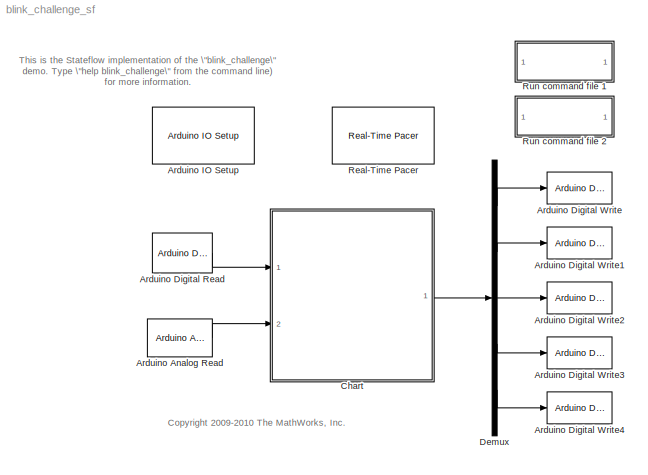
MODEL blink_challenge_sf
KIND model
BLOCK [Reference] Arduino Analog Read  REF=arduino_io_lib/Arduino Analog Read
  Ports = [0, 1]
  SourceBlock = arduino_io_lib/Arduino Analog Read
  SourceType = Arduino IO Analog Read
  T = 0.1
  arduinoPin = 2
  arduinoVar = Temporary arduino variable: Arduino1
BLOCK [Reference] Arduino Digital Read  REF=arduino_io_lib/Arduino Digital Read
  Ports = [0, 1]
  SourceBlock = arduino_io_lib/Arduino Digital Read
  SourceType = Arduino IO digital read
  T = 0.1
  arduinoPin = 2
  arduinoVar = Temporary arduino variable: Arduino1
BLOCK [Reference] Arduino Digital Write  REF=arduino_io_lib/Arduino Digital Write
  Ports = [1]
  SourceBlock = arduino_io_lib/Arduino Digital Write
  SourceType = Arduino IO digital Write
  T = 0.1
  arduinoPin = 9
  arduinoVar = Temporary arduino variable: Arduino1
BLOCK [Reference] Arduino Digital Write1  REF=arduino_io_lib/Arduino Digital Write
  Ports = [1]
  SourceBlock = arduino_io_lib/Arduino Digital Write
  SourceType = Arduino IO digital Write
  T = 0.1
  arduinoPin = 10
  arduinoVar = Temporary arduino variable: Arduino1
BLOCK [Reference] Arduino Digital Write2  REF=arduino_io_lib/Arduino Digital Write
  Ports = [1]
  SourceBlock = arduino_io_lib/Arduino Digital Write
  SourceType = Arduino IO digital Write
  T = 0.1
  arduinoPin = 11
  arduinoVar = Temporary arduino variable: Arduino1
BLOCK [Reference] Arduino Digital Write3  REF=arduino_io_lib/Arduino Digital Write
  Ports = [1]
  SourceBlock = arduino_io_lib/Arduino Digital Write
  SourceType = Arduino IO digital Write
  T = 0.1
  arduinoPin = 12
  arduinoVar = Temporary arduino variable: Arduino1
BLOCK [Reference] Arduino Digital Write4  REF=arduino_io_lib/Arduino Digital Write
  Ports = [1]
  SourceBlock = arduino_io_lib/Arduino Digital Write
  SourceType = Arduino IO digital Write
  T = 0.1
  arduinoPin = 13
  arduinoVar = Temporary arduino variable: Arduino1
BLOCK [Reference] Arduino IO Setup  REF=arduino_io_lib/Arduino IO Setup
  Ports = []
  Priority = 3
  SourceBlock = arduino_io_lib/Arduino IO Setup
  SourceType = Arduino IO Setup
  arduinoVar = Temporary arduino variable: Arduino1
  comPort = COM9
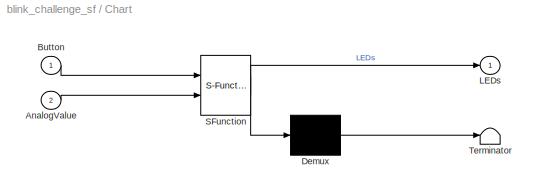
BLOCK [SubSystem] Chart
  ErrorFcn = Stateflow.Translate.translate
  FunctionWithSeparateData = off
  MaskDescription = Stateflow diagram
  MaskDisplay = plot(sf('Private','sfblk','xIcon'),sf('Private','sfblk','yIcon'));text(0.5,0,sf('Private', 'sfblk', 'tIcon'),'HorizontalAl','Center','VerticalAl','Bottom');
  MaskHideContents = off
  MaskIconFrame = off
  MaskIconOpaque = off
  MaskIconRotate = none
  MaskIconUnits = autoscale
  MaskSelfModifiable = on
  MaskType = Stateflow
  MinAlgLoopOccurrences = off
  Opaque = off
  PermitHierarchicalResolution = ParametersOnly
  Ports = [2, 1]
  PropExecContextOutsideSubsystem = off
  RTWSystemCode = Auto
  TreatAsAtomicUnit = on
BLOCK [Demux] Chart/ Demux 
  Outputs = 1
  Ports = [1, 1]
BLOCK [S-Function] Chart/ SFunction 
  EnableBusSupport = on
  FunctionName = sf_sfun
  PortCounts = [2 2]
  Ports = [2, 2]
  Tag = Stateflow S-Function blink_challenge_sf 1
BLOCK [Terminator] Chart/ Terminator 
BLOCK [Inport] Chart/AnalogValue
  IconDisplay = Port number
  Port = 2
BLOCK [Inport] Chart/Button
  IconDisplay = Port number
BLOCK [Outport] Chart/LEDs
  IconDisplay = Port number
BLOCK [Demux] Demux
  DisplayOption = bar
  Outputs = ones(5,1)
  Ports = [1, 5]
BLOCK [Reference] Real-Time Pacer  REF=arduino_io_lib/Real-Time Pacer
  Ports = []
  SourceBlock = arduino_io_lib/Real-Time Pacer
  SourceType = RealTime_Pacer
  simTimePerRealTime = 1
BLOCK [SubSystem] Run command file 1
  FunctionWithSeparateData = off
  MaskDisplay = disp('Simulink \\nImplementation')
  MaskHideContents = off
  MaskIconFrame = on
  MaskIconOpaque = on
  MaskIconRotate = none
  MaskIconUnits = autoscale
  MinAlgLoopOccurrences = off
  Opaque = off
  OpenFcn = blink_challenge_sim
  Ports = []
  PropExecContextOutsideSubsystem = off
  RTWSystemCode = Auto
BLOCK [SubSystem] Run command file 2
  FunctionWithSeparateData = off
  MaskDisplay = disp('MATLAB \\nImplementation')
  MaskHideContents = off
  MaskIconFrame = on
  MaskIconOpaque = on
  MaskIconRotate = none
  MaskIconUnits = autoscale
  MinAlgLoopOccurrences = off
  Opaque = off
  OpenFcn = edit('blink_challenge.m');
  Ports = []
  PropExecContextOutsideSubsystem = off
  RTWSystemCode = Auto
ANNOTATION (root): <copyright redacted>
ANNOTATION (root): This is the Stateflow implementation of the \"blink_challenge\"\ndemo. Type \"help blink_challenge\" from the command line) \nfor more information.
LINE Arduino Analog Read:1 -> Chart:2
LINE Arduino Digital Read:1 -> Chart:1
LINE Chart/ Demux :1 -> Chart/ Terminator :1
LINE Chart/ SFunction :1 -> Chart/ Demux :1
LINE Chart/ SFunction :2 -> Chart/LEDs:1
LINE Chart/AnalogValue:1 -> Chart/ SFunction :2
LINE Chart/Button:1 -> Chart/ SFunction :1
LINE Chart:1 -> Demux:1
LINE Demux:1 -> Arduino Digital Write:1
LINE Demux:2 -> Arduino Digital Write1:1
LINE Demux:3 -> Arduino Digital Write2:1
LINE Demux:4 -> Arduino Digital Write3:1
LINE Demux:5 -> Arduino Digital Write4:1
CHART Chart states=13 transitions=13
  STATE_LABEL 'SelectMode'
  STATE_LABEL 'ButtonPressed'
  STATE_LABEL 'ButtonReleased\\nentry: send(ChangeMode)'
  STATE_LABEL 'ExecuteMode\\nduring: NumTicks = RawValueToTicks(AnalogValue);'
  STATE_LABEL 'All_LEDs_Off\\nentry, during: LEDs = 0;'
  STATE_LABEL 'All_LEDs_On\\nentry, during: LEDs = 1;'
  STATE_LABEL 'All_LEDs_Blink'
  STATE_LABEL 'All_LEDs_Cycle\\nentry: index = 0; LEDs = 0;'
  STATE_LABEL 'LEDS_On\\nentry: LEDs = 1;'
  STATE_LABEL 'LEDs_Off\\nentry: LEDs = 0;'
  STATE_LABEL 'numTicks = RawValueToTicks(analogValue)'
  STATE_LABEL 'setLEDs(ledIndex)'
  STATE_LABEL 'Set_one_LED\\nentry:\\n  setLEDs(index);\\n  index = (index + 1) %% 5;'
